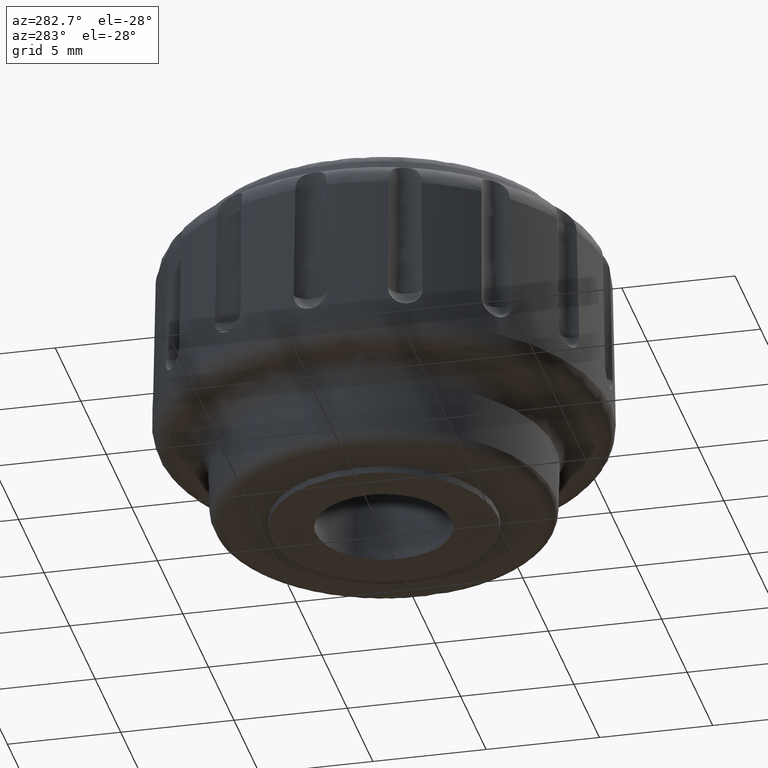
[diagram: clean part render]
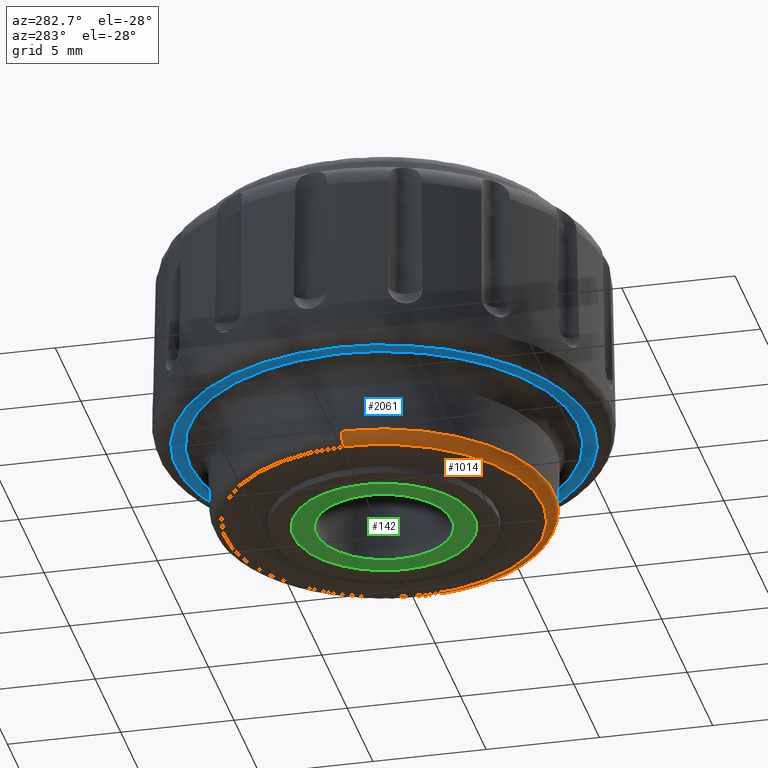
[diagram: same view with three faces highlighted in distinct colors, each labeled with its STEP entity id]
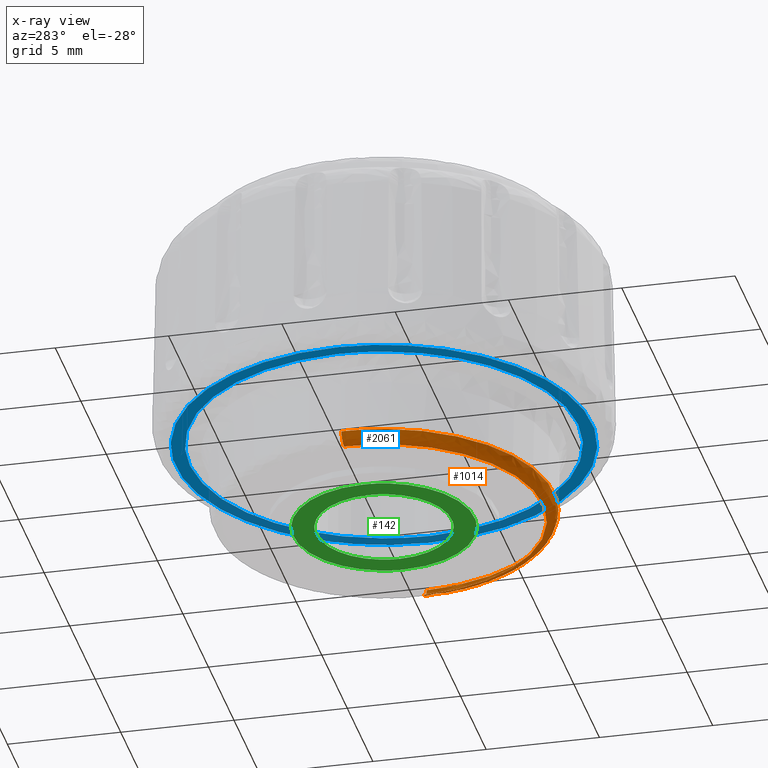
[diagram: x-ray of the same camera — body ghosted, the three highlighted faces saturated]
A machine part, auxiliary view with three faces highlighted in distinct colors.
The next image is the same camera in x-ray (body ghosted, the three faces saturated) — at least one of them is partly hidden behind the body in this view.
Their STEP definitions:

[orange] entity #1014 — the highlighted face is a freeform B-spline surface patch.
#806=CARTESIAN_POINT('',(-7.012923479830580,0.0,0.300006181227617));
#807=VERTEX_POINT('',#806);
#808=CARTESIAN_POINT('',(-7.010708724415643,0.176235436461540,0.300006181227575));
#809=VERTEX_POINT('',#808);
#810=CARTESIAN_POINT('',(-7.012923479830580,0.0,0.300006181227617));
#811=CARTESIAN_POINT('',(-7.012923480318929,0.088131634688134,0.300006181227596));
#812=CARTESIAN_POINT('',(-7.010708724415643,0.176235436461540,0.300006181227575));
#820=(BOUNDED_CURVE()B_SPLINE_CURVE(2,(#810,#811,#812),.UNSPECIFIED.,.F.,.U.)B_SPLINE_CURVE_WITH_KNOTS((3,3),(0.0,0.004420108231491),.UNSPECIFIED.)CURVE()GEOMETRIC_REPRESENTATION_ITEM()RATIONAL_B_SPLINE_CURVE((1.0,0.994821521090299,0.989826157678641))REPRESENTATION_ITEM(''));
#821=EDGE_CURVE('',#807,#809,#820,.T.);
#853=CARTESIAN_POINT('',(7.010708724415643,-0.176235436461539,0.300006181227575));
#854=VERTEX_POINT('',#853);
#868=CARTESIAN_POINT('',(7.010708724415643,-0.176235436461539,0.300006181227575));
#869=CARTESIAN_POINT('',(7.002853024105939,-0.489170000036793,0.300006181227574));
#870=CARTESIAN_POINT('',(6.947756585186882,-1.085576392943983,0.300006181227576));
#871=CARTESIAN_POINT('',(6.733211126592153,-2.045505351421862,0.300006181227577));
#872=CARTESIAN_POINT('',(6.388538629649016,-2.953092826943336,0.300006181227574));
#873=CARTESIAN_POINT('',(5.943807408667480,-3.749895322467306,0.300006181227579));
#874=CARTESIAN_POINT('',(5.396278048665983,-4.514246472713853,0.300006181227582));
#875=CARTESIAN_POINT('',(4.796876476640650,-5.146657477845449,0.300006181227574));
#876=CARTESIAN_POINT('',(3.985138833836006,-5.796716271105195,0.300006181227591));
#877=CARTESIAN_POINT('',(3.177388483376364,-6.282387856621743,0.300006181227582));
#878=CARTESIAN_POINT('',(2.306535392244951,-6.639465770833302,0.300006181227589));
#879=CARTESIAN_POINT('',(1.442415462523544,-6.881896085978994,0.300006181227593));
#880=CARTESIAN_POINT('',(0.454550501503021,-7.029960238049567,0.300006181227591));
#881=CARTESIAN_POINT('',(-0.588068618510759,-7.013662185490976,0.300006181227599));
#882=CARTESIAN_POINT('',(-1.544599371563054,-6.857611873902559,0.300006181227595));
#883=CARTESIAN_POINT('',(-2.339111832484901,-6.628809424628915,0.300006181227604));
#884=CARTESIAN_POINT('',(-3.258431140117929,-6.241182979297316,0.300006181227640));
#885=CARTESIAN_POINT('',(-4.135029378004818,-5.702211087226717,0.300006181227504));
#886=CARTESIAN_POINT('',(-4.890387340518641,-5.049551111547818,0.300006181227634));
#887=CARTESIAN_POINT('',(-5.399311101708345,-4.491671209951387,0.300006181227607));
#888=CARTESIAN_POINT('',(-5.810405594139623,-3.945487395394379,0.300006181227617));
#889=CARTESIAN_POINT('',(-6.213124748170396,-3.289916601981996,0.300006181227612));
#890=CARTESIAN_POINT('',(-6.610777991254614,-2.420901880052317,0.300006181227617));
#891=CARTESIAN_POINT('',(-6.930866737731329,-1.294799109086020,0.300006181227617));
#892=CARTESIAN_POINT('',(-7.012985413500366,-0.455324053646825,0.300006181227617));
#893=CARTESIAN_POINT('',(-7.012923479830580,0.0,0.300006181227617));
#894=B_SPLINE_CURVE_WITH_KNOTS('',3,(#868,#869,#870,#871,#872,#873,#874,#875,#876,#877,#878,#879,#880,#881,#882,#883,#884,#885,#886,#887,#888,#889,#890,#891,#892,#893),.UNSPECIFIED.,.F.,.U.,(4,1,1,1,1,1,1,1,1,1,1,1,1,1,1,1,1,1,1,1,1,1,1,4),(0.000000023127882,0.939099442600501,1.792822278149615,2.945372976467279,3.841791128957262,4.524777707219627,5.762689458151563,6.445674923336728,7.640907656390986,8.580011926673224,9.263000865809188,10.330168412688311,11.568050206322230,12.379092749388841,13.232837924456650,14.043875279338391,15.367167741667000,16.306273568623180,17.031948373888191,17.629558142115268,18.355230532958579,19.337023252281899,20.489570355925650,21.855528632636801),.UNSPECIFIED.);
#895=EDGE_CURVE('',#854,#807,#894,.T.);
#906=CARTESIAN_POINT('',(7.515382561640677,0.021168757358795,0.821162083901597));
#907=CARTESIAN_POINT('',(7.512758964298601,-0.083198883736463,0.821162083901597));
#908=CARTESIAN_POINT('',(7.321315361796393,-7.698893897407021,0.821162083901597));
#909=CARTESIAN_POINT('',(-0.188789267805313,-7.510104629601709,0.821162083901597));
#910=CARTESIAN_POINT('',(-7.698893897407021,-7.321315361796393,0.821162083901597));
#911=CARTESIAN_POINT('',(-7.507450294904066,0.294379651904017,0.821162083901597));
#912=CARTESIAN_POINT('',(-7.504826697561256,0.398747293028442,0.821162083901597));
#913=CARTESIAN_POINT('',(7.539065287037990,0.021235465056430,0.262700146388507));
#914=CARTESIAN_POINT('',(7.536433422128041,-0.083461062847205,0.262700146388507));
#915=CARTESIAN_POINT('',(7.344386536129624,-7.723154909875762,0.262700146388507));
#916=CARTESIAN_POINT('',(-0.189384186873068,-7.533770723002696,0.262700146388507));
#917=CARTESIAN_POINT('',(-7.723154909875761,-7.344386536129624,0.262700146388507));
#918=CARTESIAN_POINT('',(-7.531108023876597,0.295307310928879,0.262700146388507));
#919=CARTESIAN_POINT('',(-7.528476158965915,0.400003838861772,0.262700146388507));
#920=CARTESIAN_POINT('',(6.981213126750475,0.019664149567651,0.301193138581428));
#921=CARTESIAN_POINT('',(6.978776006343950,-0.077285372302482,0.301193138581428));
#922=CARTESIAN_POINT('',(6.800939604822291,-7.151681061769318,0.301193138581428));
#923=CARTESIAN_POINT('',(-0.175370728473513,-6.976310333295806,0.301193138581428));
#924=CARTESIAN_POINT('',(-7.151681061769318,-6.800939604822291,0.301193138581428));
#925=CARTESIAN_POINT('',(-6.973844660246964,0.273456084672276,0.301193138581428));
#926=CARTESIAN_POINT('',(-6.971407539839759,0.370405606569503,0.301193138581428));
#934=(BOUNDED_SURFACE()B_SPLINE_SURFACE(2,2,((#906,#913,#920),(#907,#914,#921),(#908,#915,#922),(#909,#916,#923),(#910,#917,#924),(#911,#918,#925),(#912,#919,#926)),.UNSPECIFIED.,.F.,.F.,.U.)B_SPLINE_SURFACE_WITH_KNOTS((3,1,2,1,3),(3,3),(0.0,0.248941593812028,12.696021284658000,25.143100975503980,25.392042569386810),(0.0,0.894535753925761),.UNSPECIFIED.)GEOMETRIC_REPRESENTATION_ITEM()RATIONAL_B_SPLINE_SURFACE(((0.926504404483267,0.616151656183051,0.921898210667624),(0.921139916227197,0.612584119636482,0.916560392411730),(0.647551015162398,0.430639755757938,0.644331661355853),(0.915775427971128,0.609016583089912,0.911222574155835),(0.647551015162398,0.430639755757938,0.644331661355853),(0.921139916228723,0.612584119637496,0.916560392413248),(0.926504404486318,0.616151656185081,0.921898210670661)))REPRESENTATION_ITEM('')SURFACE());
#935=CARTESIAN_POINT('',(7.510381845278650,-0.188796236467198,0.786899181095322));
#936=VERTEX_POINT('',#935);
#937=CARTESIAN_POINT('',(0.589436281440103,-7.489595726036523,0.786898643766699));
#938=VERTEX_POINT('',#937);
#939=CARTESIAN_POINT('',(7.510381845278650,-0.188796236467198,0.786899181095322));
#940=CARTESIAN_POINT('',(7.340209694225131,-6.958305270587470,0.786898912401695));
#941=CARTESIAN_POINT('',(0.589436281440103,-7.489595726036523,0.786898643766700));
#949=(BOUNDED_CURVE()B_SPLINE_CURVE(2,(#939,#940,#941),.UNSPECIFIED.,.F.,.U.)B_SPLINE_CURVE_WITH_KNOTS((3,3),(0.504420108230302,0.736331475461176),.UNSPECIFIED.)CURVE()GEOMETRIC_REPRESENTATION_ITEM()RATIONAL_B_SPLINE_CURVE((0.989826157681329,0.727732675361027,0.969723721025654))REPRESENTATION_ITEM(''));
#950=EDGE_CURVE('',#936,#938,#949,.T.);
#951=ORIENTED_EDGE('',*,*,#950,.T.);
#952=CARTESIAN_POINT('',(-7.512754453650633,0.0,0.786899181227618));
#953=VERTEX_POINT('',#952);
#954=CARTESIAN_POINT('',(0.589436281440103,-7.489595726036523,0.786898643766700));
#955=CARTESIAN_POINT('',(0.295173088440660,-7.512754439872612,0.786898653527990));
#956=CARTESIAN_POINT('',(-1.064398E-009,-7.512754440148284,0.786898664087482));
#957=CARTESIAN_POINT('',(-7.512754454161099,-7.512754447164729,0.786898932848006));
#958=CARTESIAN_POINT('',(-7.512754453650633,0.0,0.786899181227618));
#966=(BOUNDED_CURVE()B_SPLINE_CURVE(2,(#954,#955,#956,#957,#958),.UNSPECIFIED.,.F.,.U.)B_SPLINE_CURVE_WITH_KNOTS((3,2,3),(0.736331475461176,0.750000000000000,1.0),.UNSPECIFIED.)CURVE()GEOMETRIC_REPRESENTATION_ITEM()RATIONAL_B_SPLINE_CURVE((0.969723721025654,0.983986327405572,1.0,0.707106781186548,1.0))REPRESENTATION_ITEM(''));
#967=EDGE_CURVE('',#938,#953,#966,.T.);
#968=ORIENTED_EDGE('',*,*,#967,.T.);
#969=CARTESIAN_POINT('',(-7.510381845278651,0.188796236467201,0.786899181095322));
#970=VERTEX_POINT('',#969);
#971=CARTESIAN_POINT('',(-7.512754453650633,0.0,0.786899181227618));
#972=CARTESIAN_POINT('',(-7.512754453648901,0.094413026556392,0.786899181161470));
#973=CARTESIAN_POINT('',(-7.510381845278651,0.188796236467201,0.786899181095322));
#981=(BOUNDED_CURVE()B_SPLINE_CURVE(2,(#971,#972,#973),.UNSPECIFIED.,.F.,.U.)B_SPLINE_CURVE_WITH_KNOTS((3,3),(0.0,0.004420108230302),.UNSPECIFIED.)CURVE()GEOMETRIC_REPRESENTATION_ITEM()RATIONAL_B_SPLINE_CURVE((1.0,0.994821521091692,0.989826157681329))REPRESENTATION_ITEM(''));
#982=EDGE_CURVE('',#953,#970,#981,.T.);
#983=ORIENTED_EDGE('',*,*,#982,.T.);
#984=CARTESIAN_POINT('',(-7.510381845278651,0.188796236467201,0.786899181095322));
#985=CARTESIAN_POINT('',(-7.497636099644631,0.188475833499905,0.299984876693508));
#986=CARTESIAN_POINT('',(-7.010708724415643,0.176235436461540,0.300006181227575));
#994=(BOUNDED_CURVE()B_SPLINE_CURVE(2,(#984,#985,#986),.UNSPECIFIED.,.F.,.U.)B_SPLINE_CURVE_WITH_KNOTS((3,3),(-1.731976695722833,-0.279963549511335),.UNSPECIFIED.)CURVE()GEOMETRIC_REPRESENTATION_ITEM()RATIONAL_B_SPLINE_CURVE((0.889169501448976,0.635415740063215,0.885030186416485))REPRESENTATION_ITEM(''));
#995=EDGE_CURVE('',#970,#809,#994,.T.);
#996=ORIENTED_EDGE('',*,*,#995,.T.);
#997=ORIENTED_EDGE('',*,*,#821,.F.);
#998=ORIENTED_EDGE('',*,*,#895,.F.);
#999=CARTESIAN_POINT('',(7.510381845278650,-0.188796236467198,0.786899181095322));
#1000=CARTESIAN_POINT('',(7.497636099644632,-0.188475833499903,0.299984876693506));
#1001=CARTESIAN_POINT('',(7.010708724415643,-0.176235436461539,0.300006181227575));
#1009=(BOUNDED_CURVE()B_SPLINE_CURVE(2,(#999,#1000,#1001),.UNSPECIFIED.,.F.,.U.)B_SPLINE_CURVE_WITH_KNOTS((3,3),(-1.731976695722833,-0.279963549511331),.UNSPECIFIED.)CURVE()GEOMETRIC_REPRESENTATION_ITEM()RATIONAL_B_SPLINE_CURVE((0.889169501448976,0.635415740063215,0.885030186416486))REPRESENTATION_ITEM(''));
#1010=EDGE_CURVE('',#936,#854,#1009,.T.);
#1011=ORIENTED_EDGE('',*,*,#1010,.F.);
#1012=EDGE_LOOP('',(#951,#968,#983,#996,#997,#998,#1011));
#1013=FACE_OUTER_BOUND('',#1012,.T.);
#1014=ADVANCED_FACE('',(#1013),#934,.T.);

[blue] entity #2061 — the highlighted face is a freeform B-spline surface patch.
#1787=CARTESIAN_POINT('',(8.568339950193815,-0.215391223595537,3.999995232919740));
#1788=VERTEX_POINT('',#1787);
#1802=CARTESIAN_POINT('',(-8.571046778626190,0.0,3.999995232919740));
#1803=VERTEX_POINT('',#1802);
#1804=CARTESIAN_POINT('',(8.568339950193815,-0.215391223595537,3.999995232919740));
#1805=CARTESIAN_POINT('',(8.554004549817625,-0.789093271330240,3.999995232919738));
#1806=CARTESIAN_POINT('',(8.440034048617747,-1.690758755515725,3.999995232919742));
#1807=CARTESIAN_POINT('',(8.054694290214616,-3.011836844345816,3.999995232919750));
#1808=CARTESIAN_POINT('',(7.552400237412207,-4.125206753009243,3.999995232919701));
#1809=CARTESIAN_POINT('',(6.874920582651343,-5.161394194252348,3.999995232919781));
#1810=CARTESIAN_POINT('',(6.236767051765968,-5.899407471948780,3.999995232919711));
#1811=CARTESIAN_POINT('',(5.593763151621348,-6.511120206664278,3.999995232919734));
#1812=CARTESIAN_POINT('',(4.991158120670556,-6.984734929709116,3.999995232919752));
#1813=CARTESIAN_POINT('',(4.257945202671553,-7.453385146647328,3.999995232919726));
#1814=CARTESIAN_POINT('',(3.560752556635725,-7.811381329164703,3.999995232919721));
#1815=CARTESIAN_POINT('',(2.622103835266521,-8.183039970275377,3.999995232919723));
#1816=CARTESIAN_POINT('',(1.524938493750530,-8.469362190655579,3.999995232919817));
#1817=CARTESIAN_POINT('',(0.344913663214893,-8.587772521659737,3.999995232919598));
#1818=CARTESIAN_POINT('',(-0.803926540600195,-8.555848789812638,3.999995232919726));
#1819=CARTESIAN_POINT('',(-1.820731627005742,-8.399510664617077,3.999995232919713));
#1820=CARTESIAN_POINT('',(-2.841637640557657,-8.105502529085888,3.999995232919751));
#1821=CARTESIAN_POINT('',(-3.823221136373979,-7.698593907290269,3.999995232919931));
#1822=CARTESIAN_POINT('',(-4.804611598280349,-7.131651658733103,3.999995232919195));
#1823=CARTESIAN_POINT('',(-5.738089451811058,-6.401383379264914,3.999995232920982));
#1824=CARTESIAN_POINT('',(-6.468334735808397,-5.652824331194506,3.999995232919331));
#1825=CARTESIAN_POINT('',(-7.127949435949146,-4.798320446986806,3.999995232919712));
#1826=CARTESIAN_POINT('',(-7.644123213934957,-3.928643014875516,3.999995232919779));
#1827=CARTESIAN_POINT('',(-8.037825361416591,-3.017318218213311,3.999995232919739));
#1828=CARTESIAN_POINT('',(-8.343350141940819,-2.054966789380422,3.999995232919737));
#1829=CARTESIAN_POINT('',(-8.530055450235555,-1.060799443749337,3.999995232919746));
#1830=CARTESIAN_POINT('',(-8.571049449962695,-0.313019866213128,3.999995232919738));
#1831=CARTESIAN_POINT('',(-8.571046778626190,0.0,3.999995232919740));
#1832=B_SPLINE_CURVE_WITH_KNOTS('',3,(#1804,#1805,#1806,#1807,#1808,#1809,#1810,#1811,#1812,#1813,#1814,#1815,#1816,#1817,#1818,#1819,#1820,#1821,#1822,#1823,#1824,#1825,#1826,#1827,#1828,#1829,#1830,#1831),.UNSPECIFIED.,.F.,.U.,(4,1,1,1,1,1,1,1,1,1,1,1,1,1,1,1,1,1,1,1,1,1,1,1,1,4),(6.586870E-009,1.721619211298144,2.712862222661737,4.121480101239630,5.373575329876385,6.416988410363448,7.043037662892257,8.034282838217127,8.712503093160080,9.651571357746622,10.381966727636440,11.738407539840150,13.042668378816950,13.929551982216021,15.181639464786381,16.120724143253589,17.111966053414768,18.364063145131070,19.511816189218969,20.659573757918949,21.494302695836009,22.746405045529411,23.685475224512501,24.468030701574840,25.772302560190191,26.711364927126109),.UNSPECIFIED.);
#1833=EDGE_CURVE('',#1788,#1803,#1832,.T.);
#1835=CARTESIAN_POINT('',(-8.568339950193813,0.215391223595539,3.999995232919740));
#1836=VERTEX_POINT('',#1835);
#1837=CARTESIAN_POINT('',(-8.571046778626190,0.0,3.999995232919740));
#1838=CARTESIAN_POINT('',(-8.571046778623011,0.107712620197660,3.999995232919740));
#1839=CARTESIAN_POINT('',(-8.568339950193813,0.215391223595539,3.999995232919740));
#1847=(BOUNDED_CURVE()B_SPLINE_CURVE(2,(#1837,#1838,#1839),.UNSPECIFIED.,.F.,.U.)B_SPLINE_CURVE_WITH_KNOTS((3,3),(0.0,0.004420108230182),.UNSPECIFIED.)CURVE()GEOMETRIC_REPRESENTATION_ITEM()RATIONAL_B_SPLINE_CURVE((1.0,0.994821521091832,0.989826157681599))REPRESENTATION_ITEM(''));
#1848=EDGE_CURVE('',#1803,#1836,#1847,.T.);
#1901=CARTESIAN_POINT('',(8.571046778626190,0.0,3.999995232919740));
#1902=VERTEX_POINT('',#1901);
#1903=CARTESIAN_POINT('',(-8.568339950193813,0.215391223595539,3.999995232919740));
#1904=CARTESIAN_POINT('',(-8.557439059975238,0.650004941638191,3.999995232919745));
#1905=CARTESIAN_POINT('',(-8.472811335247231,1.482861626484211,3.999995232919730));
#1906=CARTESIAN_POINT('',(-8.195438398613204,2.581519571927234,3.999995232919754));
#1907=CARTESIAN_POINT('',(-7.780865748414322,3.653441610418445,3.999995232919698));
#1908=CARTESIAN_POINT('',(-7.220632999991723,4.679217886552633,3.999995232919821));
#1909=CARTESIAN_POINT('',(-6.479926612883550,5.649344679518435,3.999995232919611));
#1910=CARTESIAN_POINT('',(-5.727981847086605,6.400381358873167,3.999995232919818));
#1911=CARTESIAN_POINT('',(-4.964970578826985,7.007622760961978,3.999995232919649));
#1912=CARTESIAN_POINT('',(-4.169326849469951,7.509382808171532,3.999995232919775));
#1913=CARTESIAN_POINT('',(-3.259758434358228,7.948789708117064,3.999995232919905));
#1914=CARTESIAN_POINT('',(-2.155741517377275,8.328631772858822,3.999995232919573));
#1915=CARTESIAN_POINT('',(-1.040061618102109,8.534198429538948,3.999995232919936));
#1916=CARTESIAN_POINT('',(0.125107168040768,8.590498472467795,3.999995232919495));
#1917=CARTESIAN_POINT('',(1.046745142369734,8.525518606844138,3.999995232919775));
#1918=CARTESIAN_POINT('',(2.056550078356248,8.338634392879555,3.999995232919793));
#1919=CARTESIAN_POINT('',(3.007807567944138,8.052125445372033,3.999995232919708));
#1920=CARTESIAN_POINT('',(3.881579375530559,7.658309931910613,3.999995232919747));
#1921=CARTESIAN_POINT('',(4.710328363781355,7.179540828154893,3.999995232919740));
#1922=CARTESIAN_POINT('',(5.585207814121702,6.545260677661688,3.999995232919741));
#1923=CARTESIAN_POINT('',(6.479010475063340,5.661929480611375,3.999995232919742));
#1924=CARTESIAN_POINT('',(7.206726746804283,4.682669290468446,3.999995232919738));
#1925=CARTESIAN_POINT('',(7.735272937831320,3.740620737409568,3.999995232919742));
#1926=CARTESIAN_POINT('',(8.085951085517277,2.886410788664113,3.999995232919739));
#1927=CARTESIAN_POINT('',(8.339012844146378,2.035652929066769,3.999995232919746));
#1928=CARTESIAN_POINT('',(8.521046348005067,1.112961986195568,3.999995232919736));
#1929=CARTESIAN_POINT('',(8.571064660490240,0.399971615902924,3.999995232919746));
#1930=CARTESIAN_POINT('',(8.571046778626190,0.0,3.999995232919740));
#1931=B_SPLINE_CURVE_WITH_KNOTS('',3,(#1903,#1904,#1905,#1906,#1907,#1908,#1909,#1910,#1911,#1912,#1913,#1914,#1915,#1916,#1917,#1918,#1919,#1920,#1921,#1922,#1923,#1924,#1925,#1926,#1927,#1928,#1929,#1930),.UNSPECIFIED.,.F.,.U.,(4,1,1,1,1,1,1,1,1,1,1,1,1,1,1,1,1,1,1,1,1,1,1,1,1,4),(6.589378E-009,1.304248995352019,2.504187720855629,3.391083531458335,4.747527724801344,5.999623279859897,7.043037662893834,7.929937361575007,8.921181641174233,9.860261194310255,10.955835678494079,12.416624946412860,13.251337147824030,14.451256791264431,15.181639464786130,16.329397637545799,17.424991097159609,18.051039376099581,19.198791350455490,20.659573757918309,21.807327471674750,22.850739467715840,23.894161941986670,24.572377091259298,25.511450355977221,26.711364927126109),.UNSPECIFIED.);
#1932=EDGE_CURVE('',#1836,#1902,#1931,.T.);
#1934=CARTESIAN_POINT('',(8.571046778626190,0.0,3.999995232919740));
#1935=CARTESIAN_POINT('',(8.571046778623011,-0.107712620197659,3.999995232919740));
#1936=CARTESIAN_POINT('',(8.568339950193815,-0.215391223595537,3.999995232919740));
#1944=(BOUNDED_CURVE()B_SPLINE_CURVE(2,(#1934,#1935,#1936),.UNSPECIFIED.,.F.,.U.)B_SPLINE_CURVE_WITH_KNOTS((3,3),(0.500000000000000,0.504420108230182),.UNSPECIFIED.)CURVE()GEOMETRIC_REPRESENTATION_ITEM()RATIONAL_B_SPLINE_CURVE((1.0,0.994821521091832,0.989826157681599))REPRESENTATION_ITEM(''));
#1945=EDGE_CURVE('',#1902,#1788,#1944,.T.);
#1951=CARTESIAN_POINT('',(10.101084257011591,-10.100884893641840,3.999995232919740));
#1952=CARTESIAN_POINT('',(-10.101084749660361,-10.100884893641840,3.999995232919740));
#1953=CARTESIAN_POINT('',(10.101084257011591,10.100885386280900,3.999995232919740));
#1954=CARTESIAN_POINT('',(-10.101084749660361,10.100885386280900,3.999995232919740));
#1955=B_SPLINE_SURFACE_WITH_KNOTS('',1,1,((#1951,#1953),(#1952,#1954)),.UNSPECIFIED.,.F.,.F.,.U.,(2,2),(2,2),(0.0,20.202169006671951),(0.0,20.201770279922741),.UNSPECIFIED.);
#1956=CARTESIAN_POINT('',(-9.183638778626181,0.0,3.999995232919740));
#1957=VERTEX_POINT('',#1956);
#1958=CARTESIAN_POINT('',(9.182913677508392,0.115401971197526,3.999995232919741));
#1959=VERTEX_POINT('',#1958);
#1960=CARTESIAN_POINT('',(-9.183638778626181,0.0,3.999995232919740));
#1961=CARTESIAN_POINT('',(-9.183654380913028,0.392869596830250,3.999995232919740));
#1962=CARTESIAN_POINT('',(-9.141550931410016,1.047649585108299,3.999995232919738));
#1963=CARTESIAN_POINT('',(-8.959813057819257,2.099406627723718,3.999995232919744));
#1964=CARTESIAN_POINT('',(-8.647704754742355,3.180281553423523,3.999995232919738));
#1965=CARTESIAN_POINT('',(-8.163993613379979,4.258548927840923,3.999995232919743));
#1966=CARTESIAN_POINT('',(-7.647578683885850,5.106561393407493,3.999995232919738));
#1967=CARTESIAN_POINT('',(-7.125236165557333,5.814619803243627,3.999995232919743));
#1968=CARTESIAN_POINT('',(-6.402797393665890,6.626446655699748,3.999995232919751));
#1969=CARTESIAN_POINT('',(-5.543283151282585,7.354782522992210,3.999995232919732));
#1970=CARTESIAN_POINT('',(-4.615905569092432,7.955249514376426,3.999995232919739));
#1971=CARTESIAN_POINT('',(-3.884746326537146,8.335818294616333,3.999995232919740));
#1972=CARTESIAN_POINT('',(-2.896968349183207,8.739860406707830,3.999995232919743));
#1973=CARTESIAN_POINT('',(-1.828383318153116,9.031020215436836,3.999995232919739));
#1974=CARTESIAN_POINT('',(-0.675644073772539,9.176357280161970,3.999995232919742));
#1975=CARTESIAN_POINT('',(0.466724519484621,9.197532021701832,3.999995232919739));
#1976=CARTESIAN_POINT('',(1.530008889479219,9.080277570050088,3.999995232919742));
#1977=CARTESIAN_POINT('',(2.586336882199463,8.827204794439435,3.999995232919741));
#1978=CARTESIAN_POINT('',(3.560120531892157,8.490530666442950,3.999995232919742));
#1979=CARTESIAN_POINT('',(4.486611348683368,8.037103980565471,3.999995232919739));
#1980=CARTESIAN_POINT('',(5.400372551861097,7.449805128953357,3.999995232919744));
#1981=CARTESIAN_POINT('',(6.159339014363464,6.838324785702420,3.999995232919739));
#1982=CARTESIAN_POINT('',(6.962647039920551,6.025568917829202,3.999995232919739));
#1983=CARTESIAN_POINT('',(7.624777704672395,5.162248839381944,3.999995232919741));
#1984=CARTESIAN_POINT('',(8.267652309005101,4.062474581314338,3.999995232919734));
#1985=CARTESIAN_POINT('',(8.715003329143476,2.988027923883912,3.999995232919757));
#1986=CARTESIAN_POINT('',(9.076968791975006,1.610817423208456,3.999995232919706));
#1987=CARTESIAN_POINT('',(9.175699599262428,0.695314338785431,3.999995232919778));
#1988=CARTESIAN_POINT('',(9.182913677508392,0.115401971197526,3.999995232919741));
#1989=B_SPLINE_CURVE_WITH_KNOTS('',3,(#1960,#1961,#1962,#1963,#1964,#1965,#1966,#1967,#1968,#1969,#1970,#1971,#1972,#1973,#1974,#1975,#1976,#1977,#1978,#1979,#1980,#1981,#1982,#1983,#1984,#1985,#1986,#1987,#1988),.UNSPECIFIED.,.F.,.U.,(4,1,1,1,1,1,1,1,1,1,1,1,1,1,1,1,1,1,1,1,1,1,1,1,1,1,4),(3.336449E-009,1.178607900181991,1.964357993514522,3.199100728285597,4.546100020444957,5.500225903342422,6.173724378067082,7.183973659183678,8.755472746122646,9.541219937794807,10.495341620388221,11.224970254278301,12.740342293569450,13.806700734912770,14.704692008175380,16.163937589063501,17.005803704155770,17.959926275412410,19.250795416289051,20.092669786782562,21.215169462109571,22.169293612295601,23.516292778450321,24.470416967826569,25.985782347584859,26.996036255322618,28.735891830264130),.UNSPECIFIED.);
#1990=EDGE_CURVE('',#1957,#1959,#1989,.T.);
#1991=ORIENTED_EDGE('',*,*,#1990,.T.);
#1992=CARTESIAN_POINT('',(9.183638778626181,0.0,3.999995232919740));
#1993=VERTEX_POINT('',#1992);
#1994=CARTESIAN_POINT('',(9.182913677508392,0.115401971197526,3.999995232919741));
#1995=CARTESIAN_POINT('',(9.183638778823266,0.057703263602324,3.999995232919740));
#1996=CARTESIAN_POINT('',(9.183638778626181,0.0,3.999995232919740));
#2004=(BOUNDED_CURVE()B_SPLINE_CURVE(2,(#1994,#1995,#1996),.UNSPECIFIED.,.F.,.U.)B_SPLINE_CURVE_WITH_KNOTS((3,3),(0.497784295921229,0.500000000000000),.UNSPECIFIED.)CURVE()GEOMETRIC_REPRESENTATION_ITEM()RATIONAL_B_SPLINE_CURVE((0.994854295642864,0.997404141201723,1.0))REPRESENTATION_ITEM(''));
#2005=EDGE_CURVE('',#1959,#1993,#2004,.T.);
#2006=ORIENTED_EDGE('',*,*,#2005,.T.);
#2007=CARTESIAN_POINT('',(-9.182913677508392,-0.115401971197527,3.999995232919740));
#2008=VERTEX_POINT('',#2007);
#2009=CARTESIAN_POINT('',(9.183638778626181,0.0,3.999995232919740));
#2010=CARTESIAN_POINT('',(9.183645537975933,-0.392867590365667,3.999995232919741));
#2011=CARTESIAN_POINT('',(9.124760064992390,-1.309573045538041,3.999995232919746));
#2012=CARTESIAN_POINT('',(8.861707055384251,-2.520589530005343,3.999995232919742));
#2013=CARTESIAN_POINT('',(8.423187502579902,-3.716618999299845,3.999995232919746));
#2014=CARTESIAN_POINT('',(7.884283714145835,-4.768099583133119,3.999995232919740));
#2015=CARTESIAN_POINT('',(7.170926847101379,-5.779667480840590,3.999995232919766));
#2016=CARTESIAN_POINT('',(6.318991536217385,-6.702295537045173,3.999995232919659));
#2017=CARTESIAN_POINT('',(5.480402788915328,-7.395483705650793,3.999995232919817));
#2018=CARTESIAN_POINT('',(4.615906743766188,-7.955250830630043,3.999995232919665));
#2019=CARTESIAN_POINT('',(3.917982989055213,-8.318523867664931,3.999995232919887));
#2020=CARTESIAN_POINT('',(3.140286596184172,-8.642157075681226,3.999995232919627));
#2021=CARTESIAN_POINT('',(2.140845771102426,-8.961032666784931,3.999995232919809));
#2022=CARTESIAN_POINT('',(0.864212782230235,-9.181872997341120,3.999995232919717));
#2023=CARTESIAN_POINT('',(-0.448783585504772,-9.198111453504280,3.999995232919745));
#2024=CARTESIAN_POINT('',(-1.565425477920578,-9.068051094388860,3.999995232919736));
#2025=CARTESIAN_POINT('',(-2.642786260222458,-8.820404422359795,3.999995232919794));
#2026=CARTESIAN_POINT('',(-3.664137470756028,-8.446160048760934,3.999995232919752));
#2027=CARTESIAN_POINT('',(-4.714523037214770,-7.908014412743205,3.999995232919095));
#2028=CARTESIAN_POINT('',(-5.583883746438241,-7.318745785956236,3.999995232921345));
#2029=CARTESIAN_POINT('',(-6.375998467787479,-6.631153575022817,3.999995232918923));
#2030=CARTESIAN_POINT('',(-7.133542532241002,-5.826307550415772,3.999995232920198));
#2031=CARTESIAN_POINT('',(-7.813115534416223,-4.881805157252199,3.999995232919602));
#2032=CARTESIAN_POINT('',(-8.391038147338488,-3.788295212035420,3.999995232919749));
#2033=CARTESIAN_POINT('',(-8.758077461971544,-2.824763078436795,3.999995232919743));
#2034=CARTESIAN_POINT('',(-9.078045629819991,-1.592117460202142,3.999995232919755));
#2035=CARTESIAN_POINT('',(-9.175479253205332,-0.714023890314234,3.999995232919734));
#2036=CARTESIAN_POINT('',(-9.182913677508392,-0.115401971197527,3.999995232919740));
#2037=B_SPLINE_CURVE_WITH_KNOTS('',3,(#2009,#2010,#2011,#2012,#2013,#2014,#2015,#2016,#2017,#2018,#2019,#2020,#2021,#2022,#2023,#2024,#2025,#2026,#2027,#2028,#2029,#2030,#2031,#2032,#2033,#2034,#2035,#2036),.UNSPECIFIED.,.F.,.U.,(4,1,1,1,1,1,1,1,1,1,1,1,1,1,1,1,1,1,1,1,1,1,1,1,1,4),(3.200778E-009,1.178607900051176,2.750101058939492,3.704225889687077,4.995099854589071,6.285974247201569,7.408473376998135,8.755472746026253,9.541219937702262,10.495341620300289,11.112717911149961,12.066842461607321,13.638325417917491,14.985311578975759,15.995556787686160,17.005803704098970,18.296670974517621,19.250795416243001,20.541669708586021,21.439669212451719,22.393791286697219,23.853040654991162,24.919415605517731,26.098037030377551,26.939910084688862,28.735891830264428),.UNSPECIFIED.);
#2038=EDGE_CURVE('',#1993,#2008,#2037,.T.);
#2039=ORIENTED_EDGE('',*,*,#2038,.T.);
#2040=CARTESIAN_POINT('',(-9.182913677508392,-0.115401971197527,3.999995232919740));
#2041=CARTESIAN_POINT('',(-9.183638778823266,-0.057703263602325,3.999995232919740));
#2042=CARTESIAN_POINT('',(-9.183638778626181,0.0,3.999995232919740));
#2050=(BOUNDED_CURVE()B_SPLINE_CURVE(2,(#2040,#2041,#2042),.UNSPECIFIED.,.F.,.U.)B_SPLINE_CURVE_WITH_KNOTS((3,3),(0.997784295921229,1.0),.UNSPECIFIED.)CURVE()GEOMETRIC_REPRESENTATION_ITEM()RATIONAL_B_SPLINE_CURVE((0.994854295642864,0.997404141201723,1.0))REPRESENTATION_ITEM(''));
#2051=EDGE_CURVE('',#2008,#1957,#2050,.T.);
#2052=ORIENTED_EDGE('',*,*,#2051,.T.);
#2053=EDGE_LOOP('',(#1991,#2006,#2039,#2052));
#2054=FACE_OUTER_BOUND('',#2053,.T.);
#2055=ORIENTED_EDGE('',*,*,#1848,.F.);
#2056=ORIENTED_EDGE('',*,*,#1833,.F.);
#2057=ORIENTED_EDGE('',*,*,#1945,.F.);
#2058=ORIENTED_EDGE('',*,*,#1932,.F.);
#2059=EDGE_LOOP('',(#2055,#2056,#2057,#2058));
#2060=FACE_BOUND('',#2059,.T.);
#2061=ADVANCED_FACE('',(#2054,#2060),#1955,.T.);

[green] entity #142 — the highlighted face is a freeform B-spline surface patch.
#5=CARTESIAN_POINT('',(-4.399599984494448,-4.399501549236767,0.0));
#6=CARTESIAN_POINT('',(4.399600199071169,-4.399501549236767,0.0));
#7=CARTESIAN_POINT('',(-4.399599984494448,4.399501406185619,0.0));
#8=CARTESIAN_POINT('',(4.399600199071169,4.399501406185619,0.0));
#9=B_SPLINE_SURFACE_WITH_KNOTS('',1,1,((#5,#7),(#6,#8)),.UNSPECIFIED.,.F.,.F.,.U.,(2,2),(2,2),(0.0,8.799200183565617),(0.0,8.799002955422386),.UNSPECIFIED.);
#10=CARTESIAN_POINT('',(4.0,0.0,0.0));
#11=VERTEX_POINT('',#10);
#12=CARTESIAN_POINT('',(0.244194158156846,-3.992539193686402,1.387779E-017));
#13=VERTEX_POINT('',#12);
#14=CARTESIAN_POINT('',(4.0,0.0,0.0));
#15=CARTESIAN_POINT('',(4.000000000000000,-3.762824267606333,0.0));
#16=CARTESIAN_POINT('',(0.244194158156845,-3.992539193686402,0.0));
#24=(BOUNDED_CURVE()B_SPLINE_CURVE(2,(#14,#15,#16),.UNSPECIFIED.,.F.,.U.)B_SPLINE_CURVE_WITH_KNOTS((3,3),(0.0,0.239332962241216),.UNSPECIFIED.)CURVE()GEOMETRIC_REPRESENTATION_ITEM()RATIONAL_B_SPLINE_CURVE((1.0,0.719603993284048,0.976072041671589))REPRESENTATION_ITEM(''));
#25=EDGE_CURVE('',#11,#13,#24,.T.);
#26=ORIENTED_EDGE('',*,*,#25,.T.);
#27=CARTESIAN_POINT('',(-4.0,0.0,0.0));
#28=VERTEX_POINT('',#27);
#29=CARTESIAN_POINT('',(0.244194158156845,-3.992539193686402,0.0));
#30=CARTESIAN_POINT('',(0.122211053203089,-4.0,0.0));
#31=CARTESIAN_POINT('',(0.0,-4.0,0.0));
#32=CARTESIAN_POINT('',(-4.000000000000000,-4.000000000000000,0.0));
#33=CARTESIAN_POINT('',(-4.0,0.0,0.0));
#41=(BOUNDED_CURVE()B_SPLINE_CURVE(2,(#29,#30,#31,#32,#33),.UNSPECIFIED.,.F.,.U.)B_SPLINE_CURVE_WITH_KNOTS((3,2,3),(0.239332962241216,0.250000000000000,0.500000000000000),.UNSPECIFIED.)CURVE()GEOMETRIC_REPRESENTATION_ITEM()RATIONAL_B_SPLINE_CURVE((0.976072041671589,0.987502787902500,1.0,0.707106781186548,1.0))REPRESENTATION_ITEM(''));
#42=EDGE_CURVE('',#13,#28,#41,.T.);
#43=ORIENTED_EDGE('',*,*,#42,.T.);
#44=CARTESIAN_POINT('',(-0.244194158156846,3.992539193686402,1.387779E-017));
#45=VERTEX_POINT('',#44);
#46=CARTESIAN_POINT('',(-4.0,0.0,0.0));
#47=CARTESIAN_POINT('',(-4.000000000000000,3.762824267606335,0.0));
#48=CARTESIAN_POINT('',(-0.244194158156845,3.992539193686402,0.0));
#56=(BOUNDED_CURVE()B_SPLINE_CURVE(2,(#46,#47,#48),.UNSPECIFIED.,.F.,.U.)B_SPLINE_CURVE_WITH_KNOTS((3,3),(0.500000000000000,0.739332962241216),.UNSPECIFIED.)CURVE()GEOMETRIC_REPRESENTATION_ITEM()RATIONAL_B_SPLINE_CURVE((1.0,0.719603993284048,0.976072041671589))REPRESENTATION_ITEM(''));
#57=EDGE_CURVE('',#28,#45,#56,.T.);
#58=ORIENTED_EDGE('',*,*,#57,.T.);
#59=CARTESIAN_POINT('',(-0.244194158156845,3.992539193686402,0.0));
#60=CARTESIAN_POINT('',(-0.122211053203088,4.0,0.0));
#61=CARTESIAN_POINT('',(0.0,4.0,0.0));
#62=CARTESIAN_POINT('',(4.000000000000000,4.000000000000000,0.0));
#63=CARTESIAN_POINT('',(4.0,0.0,0.0));
#71=(BOUNDED_CURVE()B_SPLINE_CURVE(2,(#59,#60,#61,#62,#63),.UNSPECIFIED.,.F.,.U.)B_SPLINE_CURVE_WITH_KNOTS((3,2,3),(0.739332962241216,0.750000000000000,1.0),.UNSPECIFIED.)CURVE()GEOMETRIC_REPRESENTATION_ITEM()RATIONAL_B_SPLINE_CURVE((0.976072041671589,0.987502787902500,1.0,0.707106781186548,1.0))REPRESENTATION_ITEM(''));
#72=EDGE_CURVE('',#45,#11,#71,.T.);
#73=ORIENTED_EDGE('',*,*,#72,.T.);
#74=EDGE_LOOP('',(#26,#43,#58,#73));
#75=FACE_OUTER_BOUND('',#74,.T.);
#76=CARTESIAN_POINT('',(-3.0,0.0,0.0));
#77=VERTEX_POINT('',#76);
#78=CARTESIAN_POINT('',(-0.183145618618442,2.994404395264752,1.942890E-016));
#79=VERTEX_POINT('',#78);
#80=CARTESIAN_POINT('',(-3.0,0.0,0.0));
#81=CARTESIAN_POINT('',(-3.000000000000000,2.822118200703986,0.0));
#82=CARTESIAN_POINT('',(-0.183145618618443,2.994404395264752,0.0));
#90=(BOUNDED_CURVE()B_SPLINE_CURVE(2,(#80,#81,#82),.UNSPECIFIED.,.F.,.U.)B_SPLINE_CURVE_WITH_KNOTS((3,3),(0.500000000000000,0.739332962241169),.UNSPECIFIED.)CURVE()GEOMETRIC_REPRESENTATION_ITEM()RATIONAL_B_SPLINE_CURVE((1.0,0.719603993284102,0.976072041671489))REPRESENTATION_ITEM(''));
#91=EDGE_CURVE('',#77,#79,#90,.T.);
#92=ORIENTED_EDGE('',*,*,#91,.F.);
#93=CARTESIAN_POINT('',(0.183145618618442,-2.994404395264752,1.942890E-016));
#94=VERTEX_POINT('',#93);
#95=CARTESIAN_POINT('',(0.183145618618442,-2.994404395264752,0.0));
#96=CARTESIAN_POINT('',(0.091658289902722,-3.000000000000000,0.0));
#97=CARTESIAN_POINT('',(0.0,-3.0,0.0));
#98=CARTESIAN_POINT('',(-3.0,-3.0,0.0));
#99=CARTESIAN_POINT('',(-3.0,0.0,0.0));
#107=(BOUNDED_CURVE()B_SPLINE_CURVE(2,(#95,#96,#97,#98,#99),.UNSPECIFIED.,.F.,.U.)B_SPLINE_CURVE_WITH_KNOTS((3,2,3),(0.239332962241169,0.250000000000000,0.500000000000000),.UNSPECIFIED.)CURVE()GEOMETRIC_REPRESENTATION_ITEM()RATIONAL_B_SPLINE_CURVE((0.976072041671489,0.987502787902445,1.0,0.707106781186548,1.0))REPRESENTATION_ITEM(''));
#108=EDGE_CURVE('',#94,#77,#107,.T.);
#109=ORIENTED_EDGE('',*,*,#108,.F.);
#110=CARTESIAN_POINT('',(3.0,0.0,0.0));
#111=VERTEX_POINT('',#110);
#112=CARTESIAN_POINT('',(3.0,0.0,0.0));
#113=CARTESIAN_POINT('',(2.999999999999999,-2.822118200703986,0.0));
#114=CARTESIAN_POINT('',(0.183145618618442,-2.994404395264752,0.0));
#122=(BOUNDED_CURVE()B_SPLINE_CURVE(2,(#112,#113,#114),.UNSPECIFIED.,.F.,.U.)B_SPLINE_CURVE_WITH_KNOTS((3,3),(0.0,0.239332962241169),.UNSPECIFIED.)CURVE()GEOMETRIC_REPRESENTATION_ITEM()RATIONAL_B_SPLINE_CURVE((1.0,0.719603993284102,0.976072041671489))REPRESENTATION_ITEM(''));
#123=EDGE_CURVE('',#111,#94,#122,.T.);
#124=ORIENTED_EDGE('',*,*,#123,.F.);
#125=CARTESIAN_POINT('',(-0.183145618618443,2.994404395264752,0.0));
#126=CARTESIAN_POINT('',(-0.091658289902722,3.000000000000000,0.0));
#127=CARTESIAN_POINT('',(0.0,3.0,0.0));
#128=CARTESIAN_POINT('',(3.0,3.0,0.0));
#129=CARTESIAN_POINT('',(3.0,0.0,0.0));
#137=(BOUNDED_CURVE()B_SPLINE_CURVE(2,(#125,#126,#127,#128,#129),.UNSPECIFIED.,.F.,.U.)B_SPLINE_CURVE_WITH_KNOTS((3,2,3),(0.739332962241169,0.750000000000000,1.0),.UNSPECIFIED.)CURVE()GEOMETRIC_REPRESENTATION_ITEM()RATIONAL_B_SPLINE_CURVE((0.976072041671489,0.987502787902445,1.0,0.707106781186548,1.0))REPRESENTATION_ITEM(''));
#138=EDGE_CURVE('',#79,#111,#137,.T.);
#139=ORIENTED_EDGE('',*,*,#138,.F.);
#140=EDGE_LOOP('',(#92,#109,#124,#139));
#141=FACE_BOUND('',#140,.T.);
#142=ADVANCED_FACE('',(#75,#141),#9,.F.);